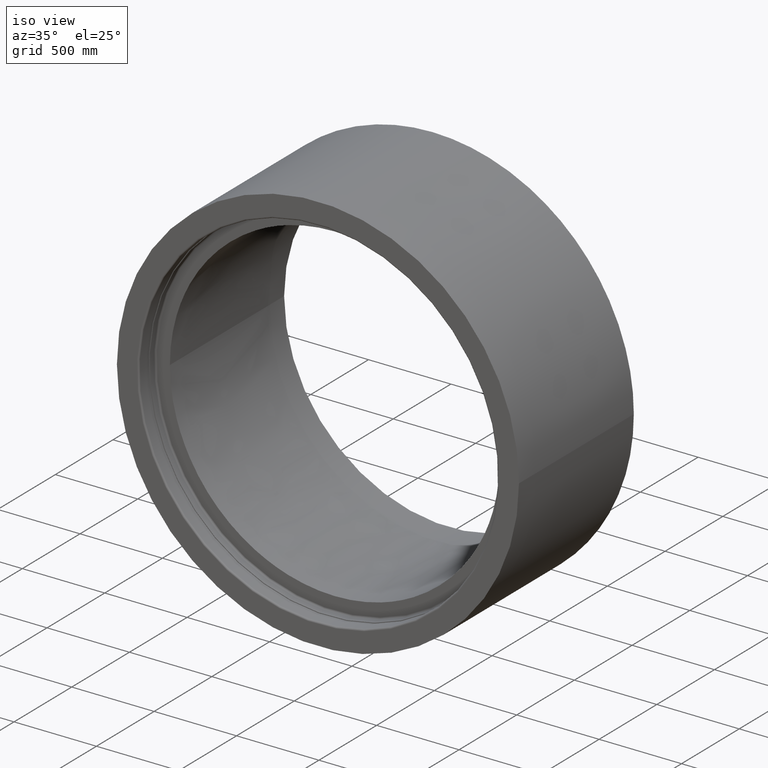
[diagram: clean part render]
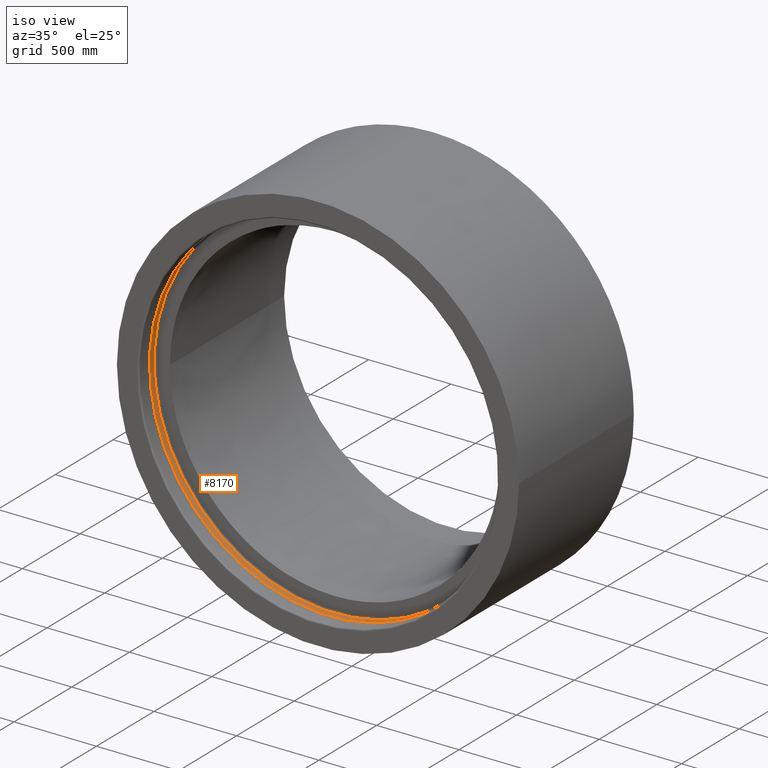
[diagram: same view with one face highlighted and labeled with its STEP entity id]
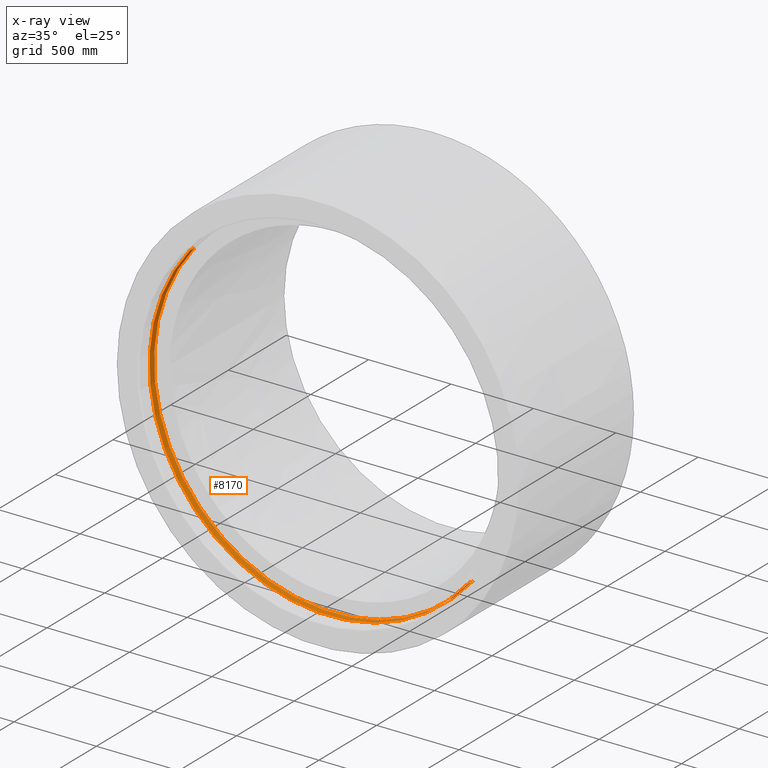
[diagram: x-ray of the same camera — body ghosted, the highlighted face saturated]
A machine part, iso view. The second image highlights one B-rep face of the part: STEP entity #8170.
The next image is the same camera in x-ray: the body ghosted, the highlighted face saturated — about 0% of this face is hidden behind the body in this view.
In plain terms, the highlighted cylindrical surface (partial cylindrical patch) has radius 1089 mm, axis along (-0, 1, 0).
Its self-contained STEP definition (entity closure, byte-faithful):
#540 = DIRECTION ( 'NONE',  ( -1.532081463855070920E-17, -1.912374979584885558E-16, 1.000000000000000000 ) ) ;
#770 = FACE_OUTER_BOUND ( 'NONE', #3222, .T. ) ;
#1000 = VERTEX_POINT ( 'NONE', #10699 ) ;
#1251 = LINE ( 'NONE', #22720, #5329 ) ;
#1369 = DIRECTION ( 'NONE',  ( -1.532081463855070612E-17, -1.912374979584885558E-16, 1.000000000000000000 ) ) ;
#2372 = DIRECTION ( 'NONE',  ( 0.7746282087706404251, 0.6324169021909432642, 1.328097612420220289E-16 ) ) ;
#2379 = EDGE_CURVE ( 'NONE', #20066, #14474, #3053, .T. ) ;
#3053 = CIRCLE ( 'NONE', #19928, 1089.000000000000000 ) ;
#3222 = EDGE_LOOP ( 'NONE', ( #11544, #17158, #7888, #11990 ) ) ;
#5329 = VECTOR ( 'NONE', #13995, 1000.000000000000000 ) ;
#5545 = EDGE_CURVE ( 'NONE', #14474, #1000, #1251, .T. ) ;
#6021 = AXIS2_PLACEMENT_3D ( 'NONE', #17818, #12417, #8739 ) ;
#6909 = CARTESIAN_POINT ( 'NONE',  ( 843.5701193512273903, 688.7020064859372042, -9.999999999999893419 ) ) ;
#7888 = ORIENTED_EDGE ( 'NONE', *, *, #10418, .T. ) ;
#8170 = ADVANCED_FACE ( 'NONE', ( #770 ), #9373, .F. ) ;
#8739 = DIRECTION ( 'NONE',  ( 0.7746282087706404251, 0.6324169021909432642, 1.322149205749081551E-16 ) ) ;
#9373 = CYLINDRICAL_SURFACE ( 'NONE', #17025, 1089.000000000000000 ) ;
#9533 = EDGE_CURVE ( 'NONE', #15218, #1000, #15928, .T. ) ;
#10418 = EDGE_CURVE ( 'NONE', #20066, #15218, #20445, .T. ) ;
#10699 = CARTESIAN_POINT ( 'NONE',  ( -843.5701193512275040, -688.7020064859370905, -10.00000000000018119 ) ) ;
#10741 = CARTESIAN_POINT ( 'NONE',  ( -843.5701193512275040, -688.7020064859370905, -50.00000000000019185 ) ) ;
#10834 = CARTESIAN_POINT ( 'NONE',  ( 0.0000000000000000000, 9.561874897924436761E-15, -50.00000000000004263 ) ) ;
#11544 = ORIENTED_EDGE ( 'NONE', *, *, #5545, .F. ) ;
#11990 = ORIENTED_EDGE ( 'NONE', *, *, #9533, .T. ) ;
#12417 = DIRECTION ( 'NONE',  ( -1.532081463855070920E-17, -1.912374979584885558E-16, 1.000000000000000000 ) ) ;
#12681 = DIRECTION ( 'NONE',  ( 0.7746282087706404251, 0.6324169021909432642, 1.338078714252082629E-16 ) ) ;
#12713 = CARTESIAN_POINT ( 'NONE',  ( 0.0000000000000000000, 0.0000000000000000000, 0.0000000000000000000 ) ) ;
#13995 = DIRECTION ( 'NONE',  ( -1.532081463855070612E-17, -1.912374979584885558E-16, 1.000000000000000000 ) ) ;
#14474 = VERTEX_POINT ( 'NONE', #10741 ) ;
#15218 = VERTEX_POINT ( 'NONE', #6909 ) ;
#15928 = CIRCLE ( 'NONE', #6021, 1089.000000000000000 ) ;
#17025 = AXIS2_PLACEMENT_3D ( 'NONE', #12713, #540, #2372 ) ;
#17109 = CARTESIAN_POINT ( 'NONE',  ( 843.5701193512273903, 688.7020064859372042, 1.446298299925619918E-13 ) ) ;
#17158 = ORIENTED_EDGE ( 'NONE', *, *, #2379, .F. ) ;
#17818 = CARTESIAN_POINT ( 'NONE',  ( 0.0000000000000000000, 1.912374979584892953E-15, -10.00000000000003730 ) ) ;
#17977 = VECTOR ( 'NONE', #1369, 1000.000000000000000 ) ;
#19801 = DIRECTION ( 'NONE',  ( -1.532081463855070920E-17, -1.912374979584885558E-16, 1.000000000000000000 ) ) ;
#19928 = AXIS2_PLACEMENT_3D ( 'NONE', #10834, #19801, #12681 ) ;
#19936 = CARTESIAN_POINT ( 'NONE',  ( 843.5701193512273903, 688.7020064859372042, -49.99999999999990052 ) ) ;
#20066 = VERTEX_POINT ( 'NONE', #19936 ) ;
#20445 = LINE ( 'NONE', #17109, #17977 ) ;
#22720 = CARTESIAN_POINT ( 'NONE',  ( -843.5701193512275040, -688.7020064859370905, -1.446298299925619666E-13 ) ) ;